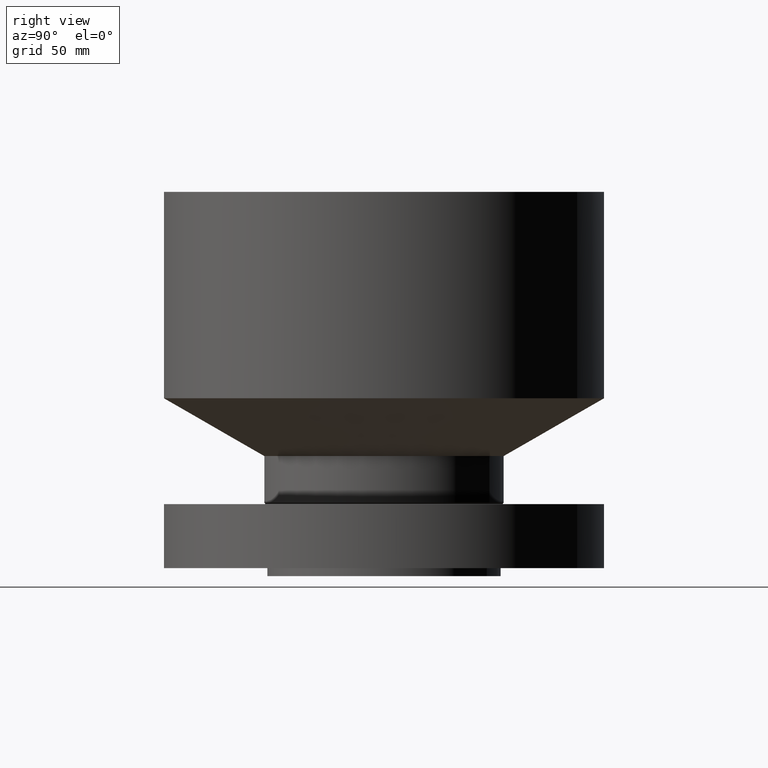
[diagram: clean part render]
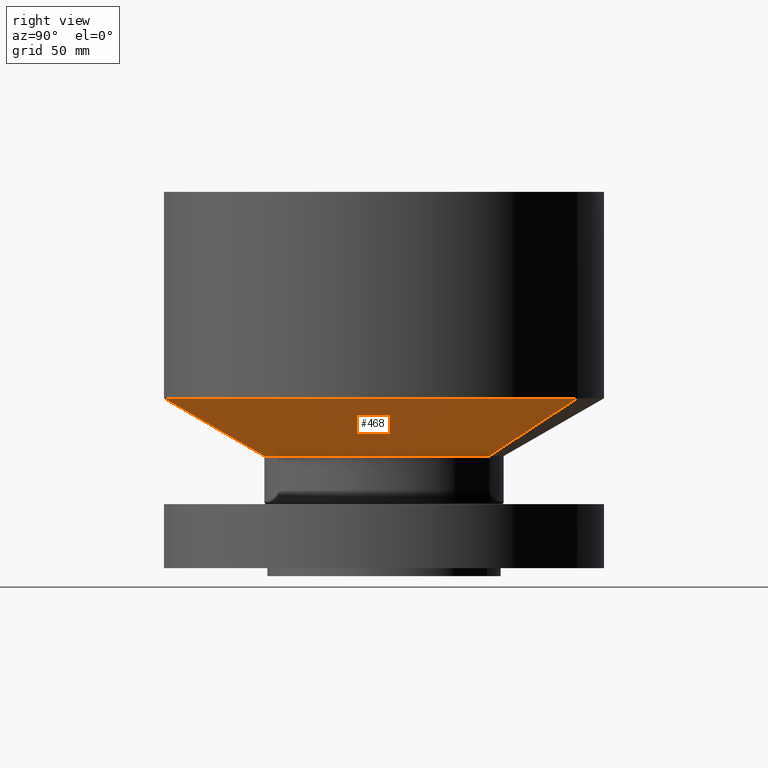
[diagram: same view with one face highlighted and labeled with its STEP entity id]
A machine part, right view. The second image highlights one B-rep face of the part: STEP entity #468.
In plain terms, the highlighted conical surface has half-angle 60 deg.
Its self-contained STEP definition (entity closure, byte-faithful):
#409=AXIS2_PLACEMENT_3D('Circle Axis2P3D',#407,#408,$) ;
#441=AXIS2_PLACEMENT_3D('Cone Axis2P3D',#438,#439,#440) ;
#452=AXIS2_PLACEMENT_3D('Circle Axis2P3D',#450,#451,$) ;
#404=CARTESIAN_POINT('Vertex',(1.79784576977,3.2909346071,3.50000000001)) ;
#407=CARTESIAN_POINT('Axis2P3D Location',(0.,0.,3.50000000001)) ;
#411=CARTESIAN_POINT('Vertex',(-1.79784576977,-3.2909346071,3.50000000001)) ;
#438=CARTESIAN_POINT('Axis2P3D Location',(0.,0.,3.50000000001)) ;
#443=CARTESIAN_POINT('Line Origine',(2.54694817385,4.66215736006,4.40210979563)) ;
#447=CARTESIAN_POINT('Vertex',(3.29605057792,6.03338011302,5.30421959124)) ;
#450=CARTESIAN_POINT('Axis2P3D Location',(0.,0.,5.30421959124)) ;
#454=CARTESIAN_POINT('Vertex',(-3.29605057792,-6.03338011302,5.30421959124)) ;
#457=CARTESIAN_POINT('Line Origine',(-2.54694817385,-4.66215736006,4.40210979563)) ;
#408=DIRECTION('Axis2P3D Direction',(0.,0.,-0.0393700787402)) ;
#439=DIRECTION('Axis2P3D Direction',(-0.,-0.,0.0393700787402)) ;
#440=DIRECTION('Axis2P3D XDirection',(0.0188750212049,0.0345504945626,0.)) ;
#444=DIRECTION('Vector Direction',(0.0163462478604,0.0299216060045,0.0196850393701)) ;
#451=DIRECTION('Axis2P3D Direction',(-0.,0.,0.0393700787402)) ;
#458=DIRECTION('Vector Direction',(-0.0163462478604,-0.0299216060045,0.0196850393701)) ;
#445=VECTOR('Line Direction',#444,0.0393700787402) ;
#459=VECTOR('Line Direction',#458,0.0393700787402) ;
#463=ORIENTED_EDGE('',*,*,#413,.F.) ;
#464=ORIENTED_EDGE('',*,*,#449,.T.) ;
#465=ORIENTED_EDGE('',*,*,#456,.T.) ;
#466=ORIENTED_EDGE('',*,*,#461,.F.) ;
#468=ADVANCED_FACE('PartBody',(#467),#442,.T.) ;
#410=CIRCLE('generated circle',#409,3.75000000002) ;
#453=CIRCLE('generated circle',#452,6.87500000003) ;
#442=CONICAL_SURFACE('Cone',#441,3.75000000001,1.0471975512) ;
#413=EDGE_CURVE('',#405,#412,#410,.T.) ;
#449=EDGE_CURVE('',#405,#448,#446,.T.) ;
#456=EDGE_CURVE('',#448,#455,#453,.F.) ;
#461=EDGE_CURVE('',#412,#455,#460,.T.) ;
#462=EDGE_LOOP('',(#463,#464,#465,#466)) ;
#467=FACE_OUTER_BOUND('',#462,.T.) ;
#446=LINE('Line',#443,#445) ;
#460=LINE('Line',#457,#459) ;
#405=VERTEX_POINT('',#404) ;
#412=VERTEX_POINT('',#411) ;
#448=VERTEX_POINT('',#447) ;
#455=VERTEX_POINT('',#454) ;